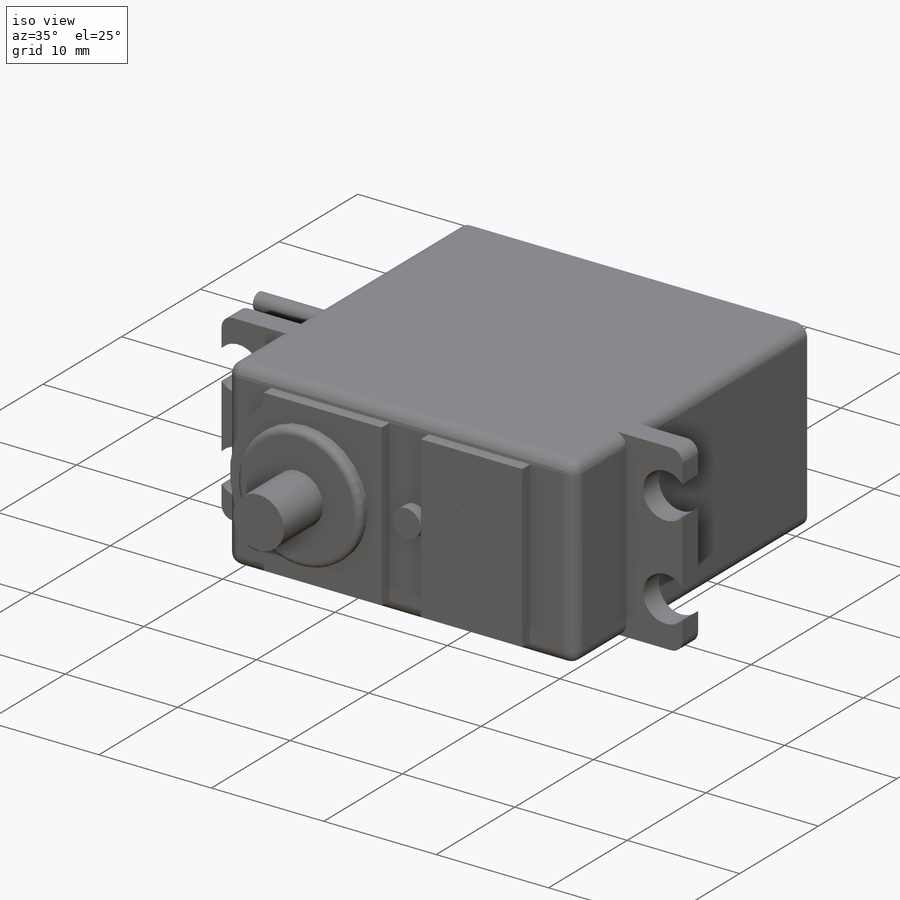
[diagram: iso view]
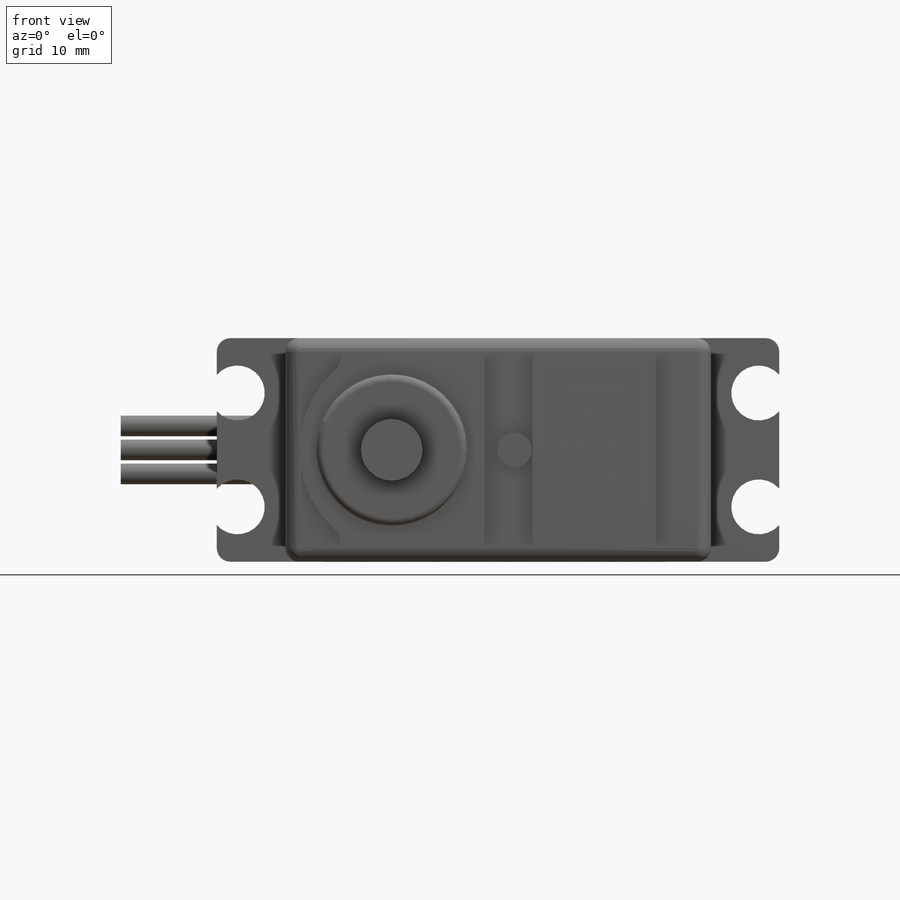
[diagram: front view]
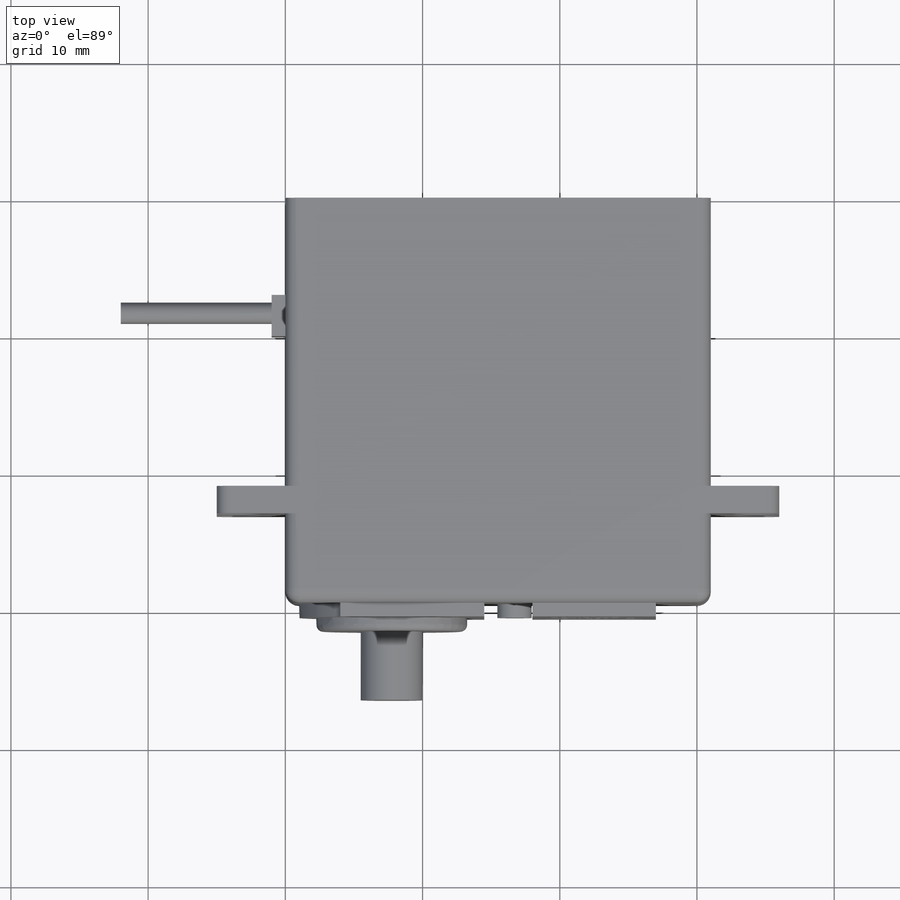
[diagram: top view]
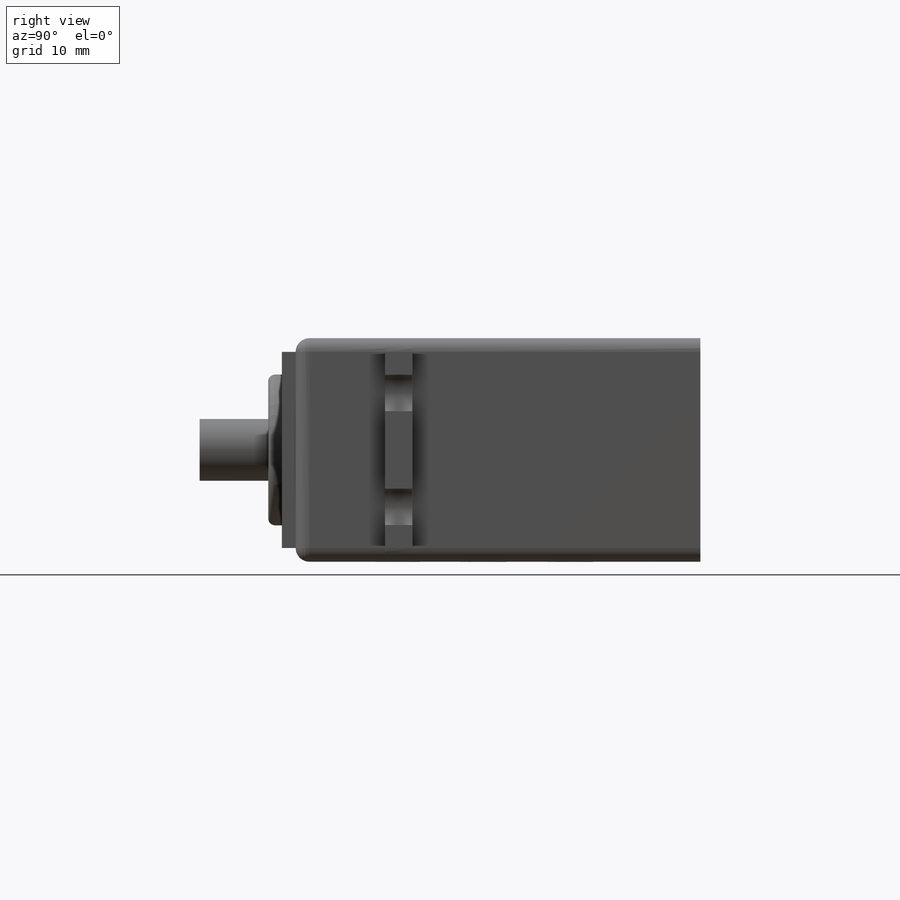
[diagram: right view]
SOLIDWORKS PART (.sldprt)
format: sldprt  version: not decoded by parser v0  size: 1,337,856 bytes
history: native  units: mm
features: sketch x12, extrude x9, plane x3, cut_extrude x3, fillet x2, material x1 (+9 scaffold rows collapsed)
feature tree (39):
  scaffold x9  (default folders/planes/origin — collapsed)
  material  "Malzeme <belirli değil>"
  plane  "Ön Düzlem"
  plane  "Üst Düzlem"
  plane  "Sağ Düzlem"
  sketch  "Çizim1"  dims[D1=31.0mm D2=16.3mm]
  extrude  "Yükseklik-Ekstrüzyon1"  Depth=29.5mm
  sketch  "Çizim3"  dims[D1=21.0mm D2=2.0mm D3=2.0mm]
  extrude  "Yükseklik-Ekstrüzyon3"  Depth=41mm
  sketch  "Çizim4"  dims[c1.D1=4.0mm c1.D4=~4.037296mm c1.D2=4.0mm c1.D3=4.0mm c2.D4=3.5mm c2.D5=3.5mm]
  cut_extrude  "Kes-Ekstrüzyon3"  Depth=4mm
  sketch  "Çizim5"  dims[D3=2.0mm D1=8.15mm D2=15.5mm]
  cut_extrude  "Kes-Ekstrüzyon4"  Depth=1mm
  fillet  "Radyus1"  Radius=1mm
  sketch  "Çizim6"  dims[c1.D3=2.5mm c1.D7=~10.111627mm c1.D10=1.0mm c2.D3=2.5mm c2.D1=9.0mm c2.D2=4.0mm c2.D4=7.15mm c2.D5=10.5mm c2.D6=3.0mm c2.D7=10.5mm c2.D8=1.0mm c2.D9=1.0mm c3.D4=7.15mm c3.D11=1.3mm]
  extrude  "Yükseklik-Ekstrüzyon5"  Depth=1mm
  sketch  "Çizim8"  dims[D1=1.0mm D2=1.0mm D3=1.0mm D4=1.0mm]
  cut_extrude  "Kes-Ekstrüzyon5"  Depth=0.01mm
  sketch  "Çizim9"
  extrude  "Yükseklik-Ekstrüzyon7"  Depth=0.01mm
  sketch  "Çizim10"  dims[D1=11.0mm D2=7.15mm D3=6.75mm]
  extrude  "Yükseklik-Ekstrüzyon8"  Depth=1mm
  fillet  "Radyus2"  Radius=0.5mm
  sketch  "Çizim11"  dims[D1=4.5mm]
  extrude  "Yükseklik-Ekstrüzyon9"  Depth=5mm
  sketch  "Çizim12"
  extrude  "Yükseklik-Ekstrüzyon10"  Depth=0.01mm
  sketch  "Çizim14"  dims[D1=6.3mm D2=5.0mm D3=7.0mm D4=3.0mm]
  extrude  "Yükseklik-Ekstrüzyon12"  Depth=1mm
  sketch  "Çizim15"  dims[D1=1.5mm D2=1.75mm D3=1.75mm D4=1.4mm]
  extrude  "Yükseklik-Ekstrüzyon13"  Depth=11mm
decode coverage: 24 of 26 modeling features carry decoded parameters
note: ~ marks probable driven/reference dimensions
note: suppression state not decoded; provenance and decode notes live in map.json
